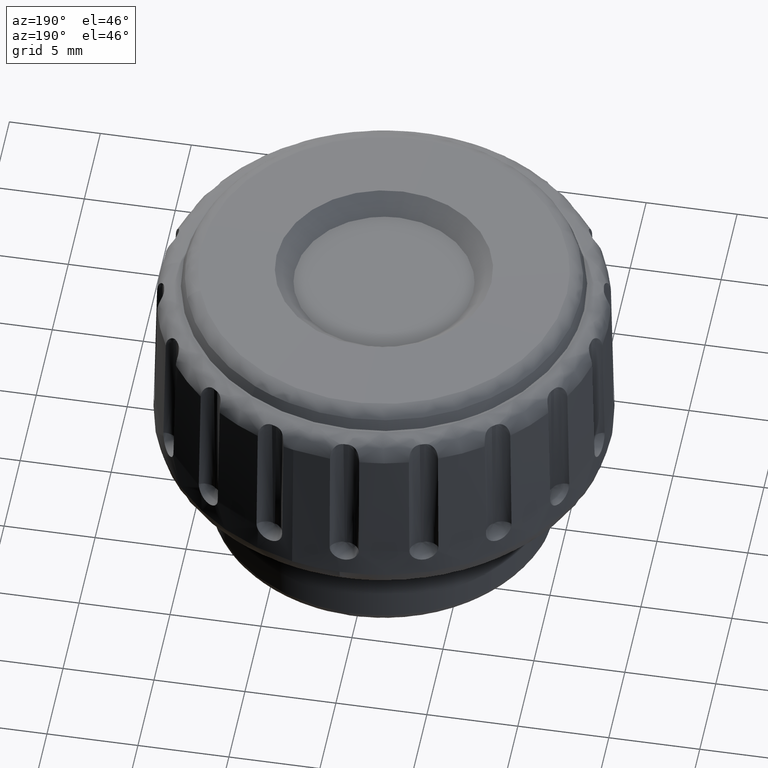
[diagram: clean part render]
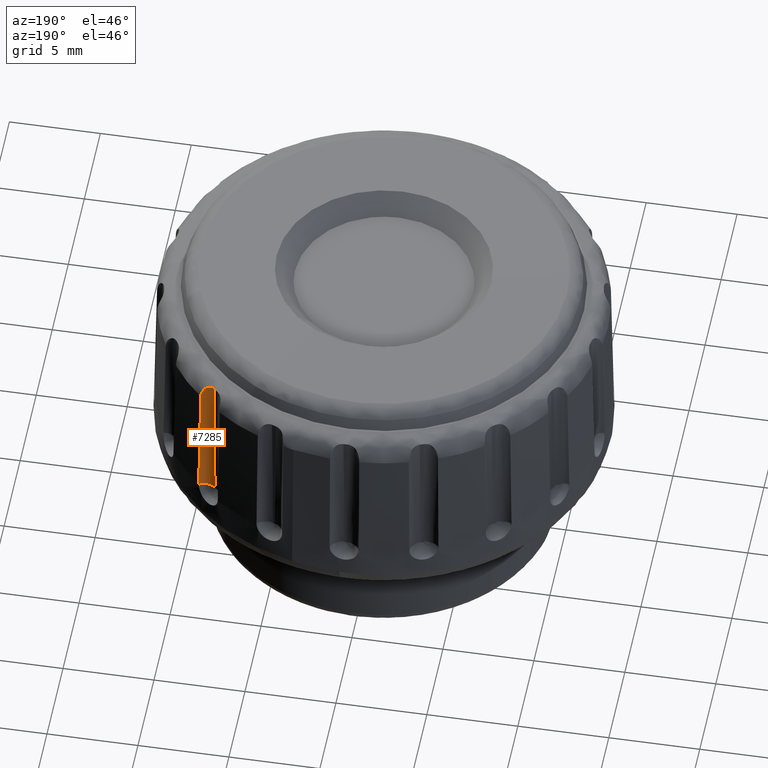
[diagram: same view with one face highlighted and labeled with its STEP entity id]
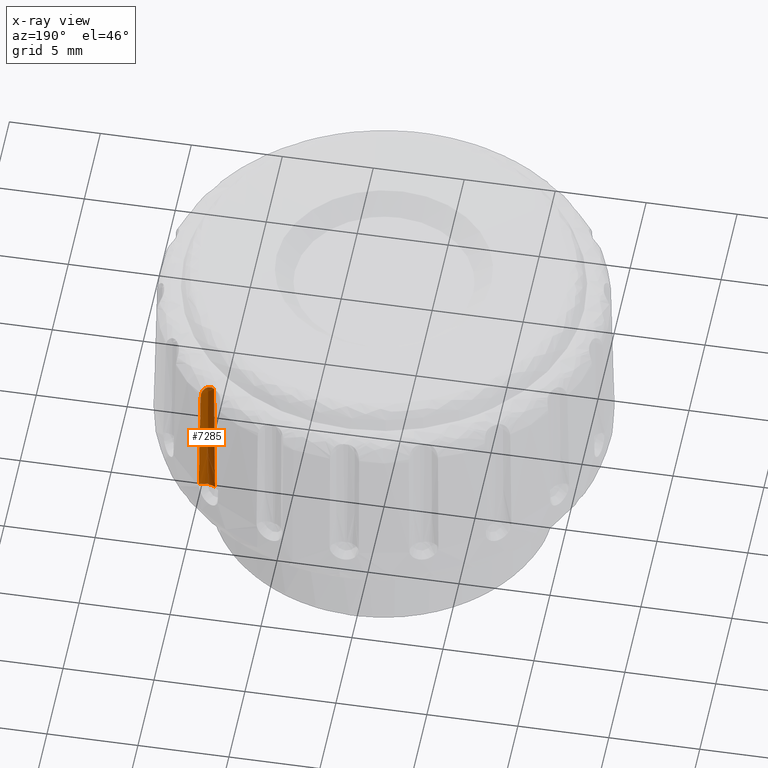
[diagram: x-ray of the same camera — body ghosted, the highlighted face saturated]
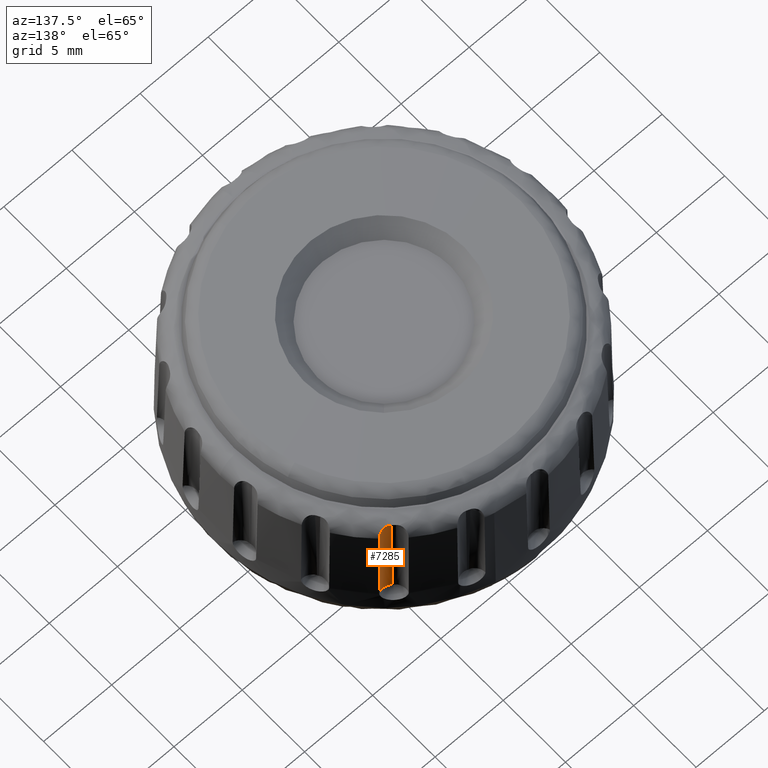
[diagram: same view with one face highlighted and labeled with its STEP entity id]
A machine part, auxiliary view. The second image highlights one B-rep face of the part: STEP entity #7285.
The next image is the same camera in x-ray: the body ghosted, the highlighted face saturated — about 0% of this face is hidden behind the body in this view.
A second angle (auxiliary view) of the same face is appended — the face is thin or edge-on in the first view.
In plain terms, the highlighted face is a freeform B-spline surface patch.
Its self-contained STEP definition (entity closure, byte-faithful):
#1905=CARTESIAN_POINT('',(8.594688259653870,8.998173104905391,8.800002999999810));
#1906=VERTEX_POINT('',#1905);
#1954=CARTESIAN_POINT('',(8.506986193708729,8.893653852737311,15.524289876473100));
#1955=VERTEX_POINT('',#1954);
#1956=CARTESIAN_POINT('',(8.506986193708729,8.893653852737311,15.524289876473100));
#1957=CARTESIAN_POINT('',(8.594688259653870,8.998173104905391,8.800002999999810));
#1958=QUASI_UNIFORM_CURVE('',1,(#1956,#1957),.UNSPECIFIED.,.F.,.U.);
#1959=EDGE_CURVE('',#1955,#1906,#1958,.T.);
#4158=CARTESIAN_POINT('',(7.748463240651120,9.032610179411170,16.400364117337599));
#4159=VERTEX_POINT('',#4158);
#4160=CARTESIAN_POINT('',(8.506986193708729,8.893653852737311,15.524289876473100));
#4161=CARTESIAN_POINT('',(8.506260772145421,8.892789328983087,15.579908058427160));
#4162=CARTESIAN_POINT('',(8.501442325754676,8.890534060122132,15.634737434845441));
#4163=CARTESIAN_POINT('',(8.483565712748639,8.883795221788356,15.742842968018390));
#4164=CARTESIAN_POINT('',(8.470512920178493,8.879302388399481,15.796119486342199));
#4165=CARTESIAN_POINT('',(8.434944153041190,8.869224162243528,15.900977825317231));
#4166=CARTESIAN_POINT('',(8.412779400132289,8.863751010659314,15.951387691156620));
#4167=CARTESIAN_POINT('',(8.372638971261027,8.856575994844175,16.023099733338789));
#4168=CARTESIAN_POINT('',(8.358090166895526,8.854358659082180,16.046389131582220));
#4169=CARTESIAN_POINT('',(8.326468888424396,8.850643778373131,16.091673406006361));
#4170=CARTESIAN_POINT('',(8.309293711576110,8.849145154584758,16.113768571365700));
#4171=CARTESIAN_POINT('',(8.254911927912755,8.846483149399147,16.176549535844440));
#4172=CARTESIAN_POINT('',(8.214652343535226,8.847064923782002,16.214152117715020));
#4173=CARTESIAN_POINT('',(8.148221901128153,8.854295282307177,16.264071124665978));
#4174=CARTESIAN_POINT('',(8.125141113289967,8.857789213262018,16.279537166770488));
#4175=CARTESIAN_POINT('',(8.078507338032212,8.867120624154856,16.307420857541558));
#4176=CARTESIAN_POINT('',(8.054788925978780,8.872971649406019,16.319969034108830));
#4177=CARTESIAN_POINT('',(8.006712885735674,8.887369459135289,16.342427248913008));
#4178=CARTESIAN_POINT('',(7.982355297607199,8.895914119034851,16.352338466752428));
#4179=CARTESIAN_POINT('',(7.933130605083070,8.916107768000584,16.369562468626789));
#4180=CARTESIAN_POINT('',(7.908875918908071,8.927510257734598,16.376661733452131));
#4181=CARTESIAN_POINT('',(7.861308453642628,8.952928662735767,16.388091417199011));
#4182=CARTESIAN_POINT('',(7.837973692482574,8.966952460951692,16.392429307540940));
#4183=CARTESIAN_POINT('',(7.792298820181831,8.997767048813344,16.398436418129720));
#4184=CARTESIAN_POINT('',(7.769892868317295,9.014628586740217,16.400095660952172));
#4185=CARTESIAN_POINT('',(7.748463240651120,9.032610179411170,16.400364117337599));
#4186=B_SPLINE_CURVE_WITH_KNOTS('',3,(#4160,#4161,#4162,#4163,#4164,#4165,#4166,#4167,#4168,#4169,#4170,#4171,#4172,#4173,#4174,#4175,#4176,#4177,#4178,#4179,#4180,#4181,#4182,#4183,#4184,#4185),.UNSPECIFIED.,.F.,.U.,(4,2,2,2,2,2,2,2,2,2,2,2,4),(0.0,0.125000000000006,0.250000000000012,0.375000000000019,0.437500000000018,0.500000000000018,0.625000000000017,0.687500000000014,0.750000000000012,0.812500000000009,0.875000000000007,0.937500000000004,1.0),.UNSPECIFIED.);
#4187=EDGE_CURVE('',#1955,#4159,#4186,.T.);
#7242=CARTESIAN_POINT('',(8.594688259654056,8.998173104905257,8.800002999999800));
#7243=CARTESIAN_POINT('',(8.561485747056258,8.958603891234249,11.345762252514531));
#7244=CARTESIAN_POINT('',(8.528282708629417,8.919034050891284,13.891496173125860));
#7245=CARTESIAN_POINT('',(8.495080353824463,8.879465025282036,16.437109524258879));
#7246=CARTESIAN_POINT('',(8.112401326105694,8.727229866134877,8.801498297712268));
#7247=CARTESIAN_POINT('',(8.096077587713998,8.740927109005286,11.347732643410289));
#7248=CARTESIAN_POINT('',(8.085349477832750,8.749929062037928,13.894024100571622));
#7249=CARTESIAN_POINT('',(8.080640444192664,8.753880410433965,16.440246823976160));
#7250=CARTESIAN_POINT('',(7.688649786393190,9.082799626818442,8.805733708062052));
#7251=CARTESIAN_POINT('',(7.703587639001762,9.070265280203978,11.352540706304870));
#7252=CARTESIAN_POINT('',(7.723074390565793,9.053913954153845,13.899324579952170));
#7253=CARTESIAN_POINT('',(7.748925640907442,9.032222179526638,16.445984915250790));
#7261=(BOUNDED_SURFACE()B_SPLINE_SURFACE(3,2,((#7242,#7246,#7250),(#7243,#7247,#7251),(#7244,#7248,#7252),(#7245,#7249,#7253)),.UNSPECIFIED.,.F.,.F.,.U.)B_SPLINE_SURFACE_WITH_KNOTS((4,4),(3,3),(0.0,7.721161193754911),(0.0,1.0),.UNSPECIFIED.)GEOMETRIC_REPRESENTATION_ITEM()RATIONAL_B_SPLINE_SURFACE(((1.0,0.822510399759742,1.0),(1.0,0.842134723258457,1.0),(1.0,0.861061522385606,1.0),(1.0,0.879417337212354,1.0)))REPRESENTATION_ITEM('')SURFACE());
#7262=CARTESIAN_POINT('',(7.688649786393090,9.082799626818531,8.805733708062050));
#7263=VERTEX_POINT('',#7262);
#7264=CARTESIAN_POINT('',(8.594688259653870,8.998173104905391,8.800002999999810));
#7265=CARTESIAN_POINT('',(8.515592953390257,8.953673785224448,8.800247912210821));
#7266=CARTESIAN_POINT('',(8.346895788378747,8.893764650881806,8.800942527680538));
#7267=CARTESIAN_POINT('',(8.122220714455434,8.891328836049956,8.802248332089599));
#7268=CARTESIAN_POINT('',(7.895846412331243,8.945509757631665,8.803842747540807));
#7269=CARTESIAN_POINT('',(7.765844173645134,9.017909880259264,8.804961576932968));
#7270=CARTESIAN_POINT('',(7.688649786393090,9.082799626818531,8.805733708062050));
#7271=B_SPLINE_CURVE_WITH_KNOTS('',3,(#7264,#7265,#7266,#7267,#7268,#7269,#7270),.UNSPECIFIED.,.F.,.U.,(4,1,1,1,4),(0.000000027472957,0.272248741688391,0.529364017621358,0.665493655743352,0.967991058824264),.UNSPECIFIED.);
#7272=EDGE_CURVE('',#1906,#7263,#7271,.T.);
#7273=ORIENTED_EDGE('',*,*,#7272,.T.);
#7274=CARTESIAN_POINT('',(7.748463240651120,9.032610179411170,16.400364117337599));
#7275=CARTESIAN_POINT('',(7.722843741933428,9.054107491336133,13.868903467068330));
#7276=CARTESIAN_POINT('',(7.703498486487683,9.070340088045695,11.337340769060660));
#7277=CARTESIAN_POINT('',(7.688649786393090,9.082799626818531,8.805733708062050));
#7278=QUASI_UNIFORM_CURVE('',3,(#7274,#7275,#7276,#7277),.UNSPECIFIED.,.F.,.U.);
#7279=EDGE_CURVE('',#4159,#7263,#7278,.T.);
#7280=ORIENTED_EDGE('',*,*,#7279,.F.);
#7281=ORIENTED_EDGE('',*,*,#4187,.F.);
#7282=ORIENTED_EDGE('',*,*,#1959,.T.);
#7283=EDGE_LOOP('',(#7273,#7280,#7281,#7282));
#7284=FACE_OUTER_BOUND('',#7283,.T.);
#7285=ADVANCED_FACE('',(#7284),#7261,.F.);